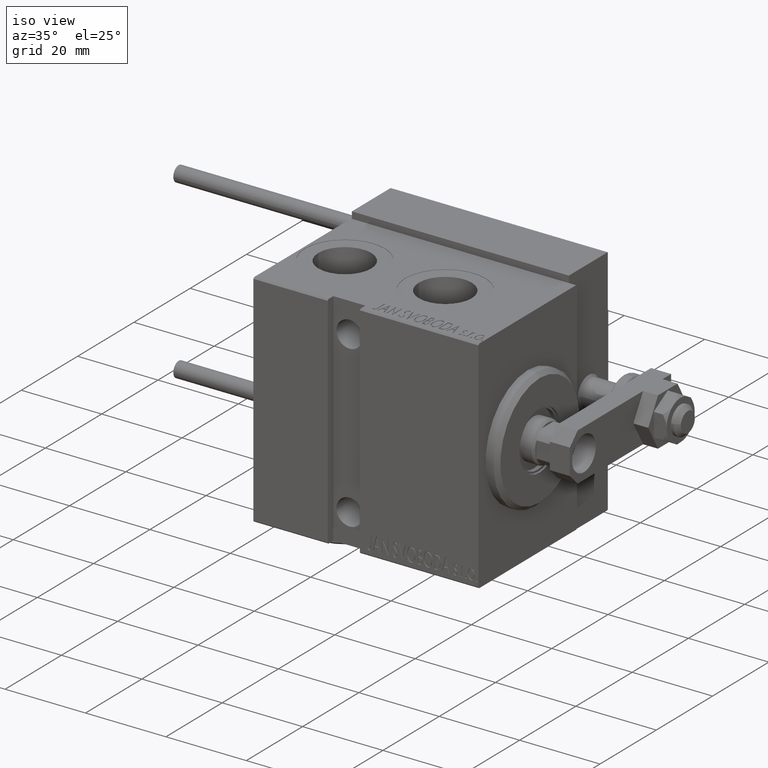
[diagram: clean part render]
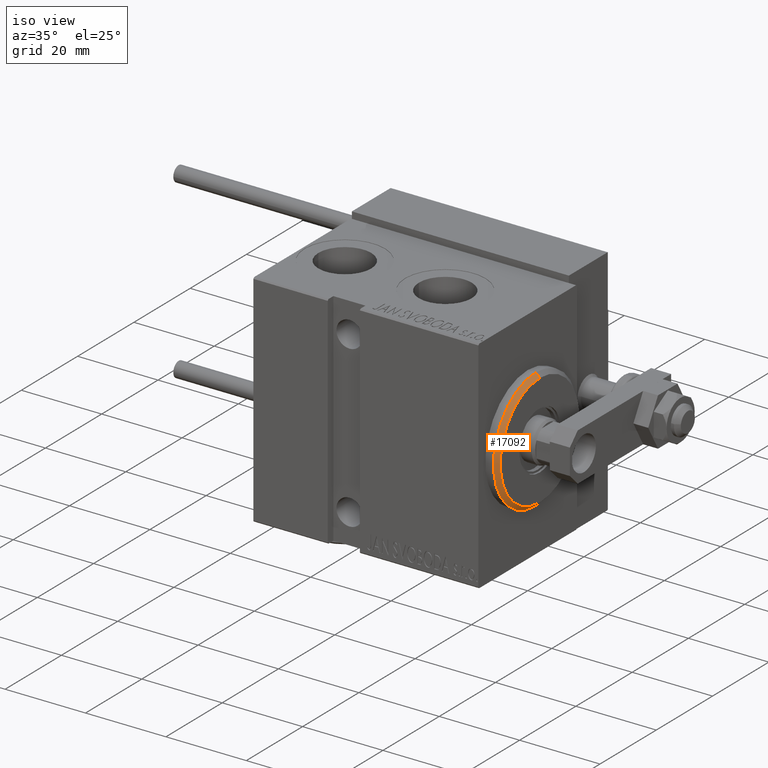
[diagram: same view with one face highlighted and labeled with its STEP entity id]
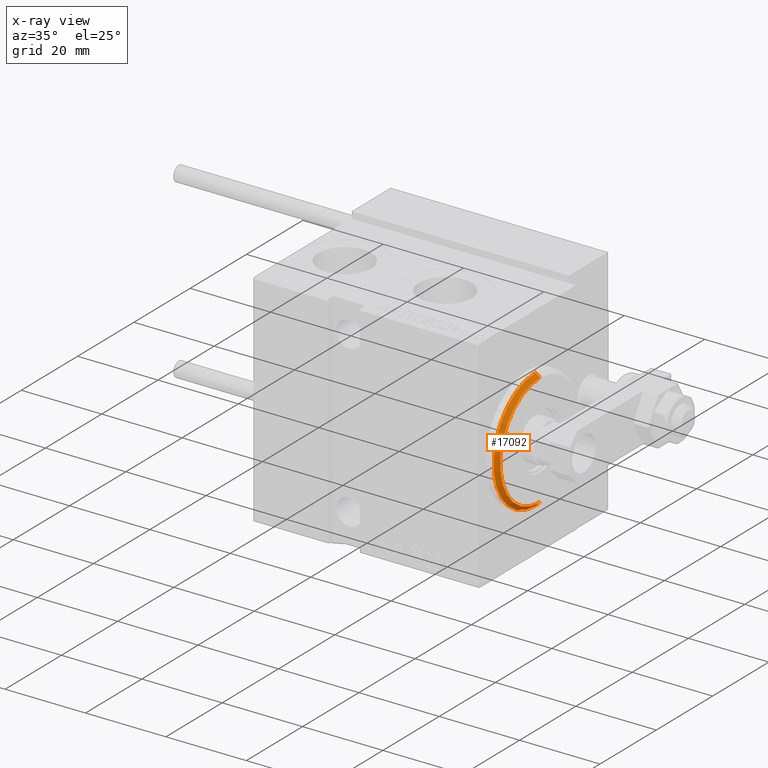
[diagram: x-ray of the same camera — body ghosted, the highlighted face saturated]
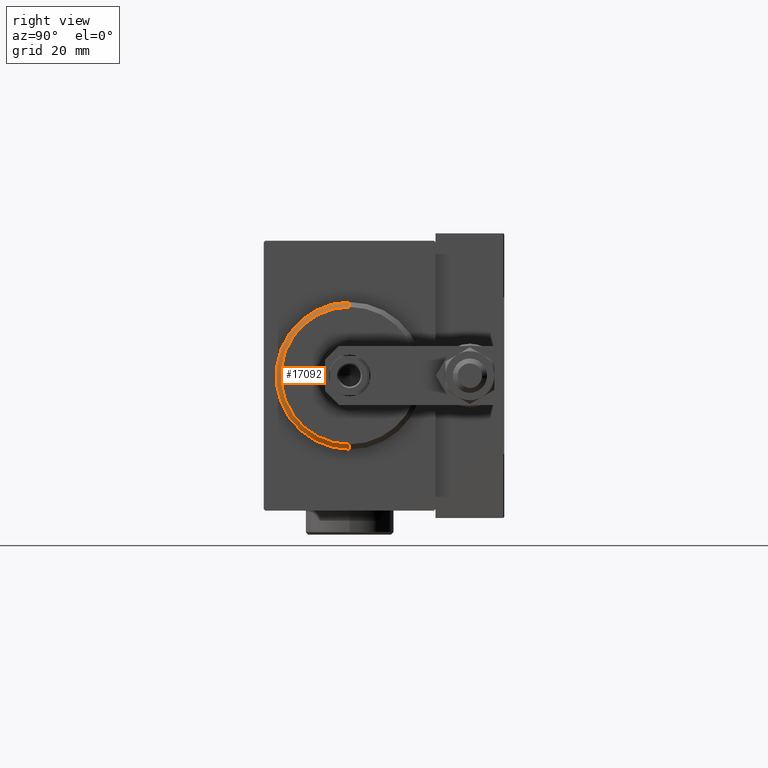
[diagram: same view with one face highlighted and labeled with its STEP entity id]
A machine part, iso view. The second image highlights one B-rep face of the part: STEP entity #17092.
The next image is the same camera in x-ray: the body ghosted, the highlighted face saturated — about 0% of this face is hidden behind the body in this view.
A second angle (right view) of the same face is appended — the face is thin or edge-on in the first view.
In plain terms, the highlighted conical surface has half-angle 45 deg.
Its self-contained STEP definition (entity closure, byte-faithful):
#449 = VERTEX_POINT ( 'NONE', #17576 ) ;
#3143 = ORIENTED_EDGE ( 'NONE', *, *, #16244, .T. ) ;
#3316 = CONICAL_SURFACE ( 'NONE', #29728, 13.99999999999998934, 0.7853981633974473908 ) ;
#3989 = DIRECTION ( 'NONE',  ( -1.000000000000000000, 0.000000000000000000, 0.000000000000000000 ) ) ;
#6224 = CIRCLE ( 'NONE', #35147, 15.00000000000000000 ) ;
#7618 = VERTEX_POINT ( 'NONE', #48391 ) ;
#8651 = LINE ( 'NONE', #24422, #9893 ) ;
#9624 = CARTESIAN_POINT ( 'NONE',  ( 3.000000000000000000, 1.714505518806293257E-15, -13.99999999999998934 ) ) ;
#9893 = VECTOR ( 'NONE', #35816, 999.9999999999998863 ) ;
#14621 = CARTESIAN_POINT ( 'NONE',  ( 1.999999999999988676, 1.836970198721029589E-15, -15.00000000000000000 ) ) ;
#14840 = DIRECTION ( 'NONE',  ( 1.000000000000000000, -0.000000000000000000, 0.000000000000000000 ) ) ;
#14946 = EDGE_LOOP ( 'NONE', ( #28333, #15519, #3143, #24321 ) ) ;
#15519 = ORIENTED_EDGE ( 'NONE', *, *, #44034, .F. ) ;
#16244 = EDGE_CURVE ( 'NONE', #7618, #449, #8651, .T. ) ;
#17092 = ADVANCED_FACE ( 'NONE', ( #46145 ), #3316, .T. ) ;
#17375 = CARTESIAN_POINT ( 'NONE',  ( 3.000000000000000000, 1.775737858763661226E-15, -13.99999999999998934 ) ) ;
#17576 = CARTESIAN_POINT ( 'NONE',  ( 1.999999999999988676, 0.000000000000000000, 15.00000000000000000 ) ) ;
#20566 = AXIS2_PLACEMENT_3D ( 'NONE', #46404, #14840, #30128 ) ;
#21014 = DIRECTION ( 'NONE',  ( -0.7071067811865482389, 8.659560562354926695E-17, -0.7071067811865469066 ) ) ;
#21195 = VERTEX_POINT ( 'NONE', #14621 ) ;
#24321 = ORIENTED_EDGE ( 'NONE', *, *, #36295, .F. ) ;
#24422 = CARTESIAN_POINT ( 'NONE',  ( 3.000000000000000000, 0.000000000000000000, 13.99999999999998934 ) ) ;
#26506 = CARTESIAN_POINT ( 'NONE',  ( 3.000000000000000000, 0.000000000000000000, 0.000000000000000000 ) ) ;
#28333 = ORIENTED_EDGE ( 'NONE', *, *, #41908, .F. ) ;
#29728 = AXIS2_PLACEMENT_3D ( 'NONE', #26506, #42279, #33254 ) ;
#30128 = DIRECTION ( 'NONE',  ( 0.000000000000000000, 0.000000000000000000, -1.000000000000000000 ) ) ;
#33254 = DIRECTION ( 'NONE',  ( 0.000000000000000000, 0.000000000000000000, 1.000000000000000000 ) ) ;
#35147 = AXIS2_PLACEMENT_3D ( 'NONE', #39424, #3989, #47442 ) ;
#35816 = DIRECTION ( 'NONE',  ( -0.7071067811865482389, 0.000000000000000000, 0.7071067811865469066 ) ) ;
#36295 = EDGE_CURVE ( 'NONE', #21195, #449, #6224, .T. ) ;
#37795 = VECTOR ( 'NONE', #21014, 999.9999999999998863 ) ;
#39424 = CARTESIAN_POINT ( 'NONE',  ( 1.999999999999988676, 0.000000000000000000, 0.000000000000000000 ) ) ;
#41908 = EDGE_CURVE ( 'NONE', #51080, #21195, #45048, .T. ) ;
#42279 = DIRECTION ( 'NONE',  ( -1.000000000000000000, 0.000000000000000000, 0.000000000000000000 ) ) ;
#44034 = EDGE_CURVE ( 'NONE', #7618, #51080, #49443, .T. ) ;
#45048 = LINE ( 'NONE', #9624, #37795 ) ;
#46145 = FACE_OUTER_BOUND ( 'NONE', #14946, .T. ) ;
#46404 = CARTESIAN_POINT ( 'NONE',  ( 3.000000000000000000, 0.000000000000000000, 0.000000000000000000 ) ) ;
#47442 = DIRECTION ( 'NONE',  ( 0.000000000000000000, 0.000000000000000000, -1.000000000000000000 ) ) ;
#48391 = CARTESIAN_POINT ( 'NONE',  ( 3.000000000000000000, 0.000000000000000000, 13.99999999999998934 ) ) ;
#49443 = CIRCLE ( 'NONE', #20566, 13.99999999999998934 ) ;
#51080 = VERTEX_POINT ( 'NONE', #17375 ) ;